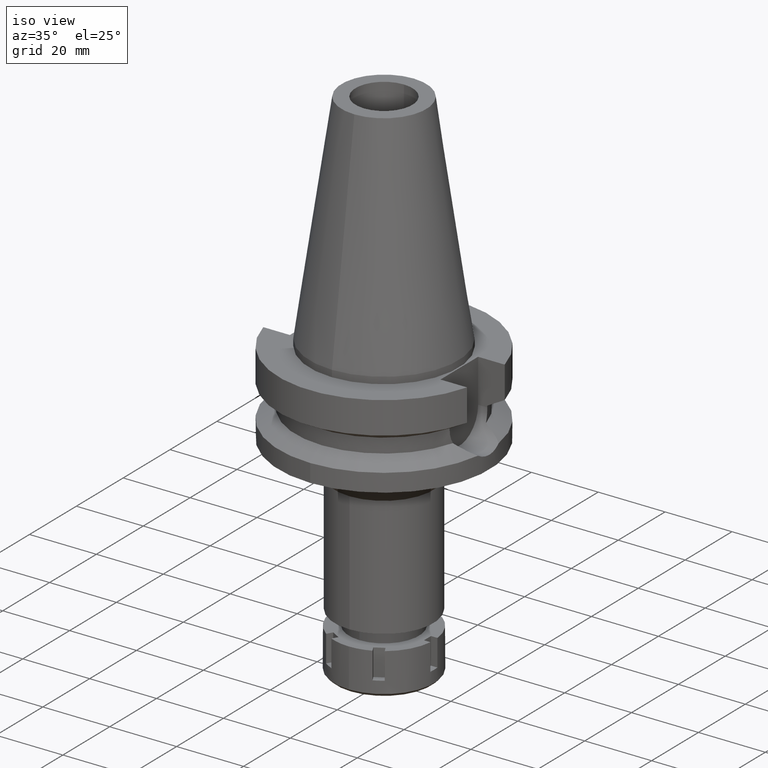
[diagram: clean part render]
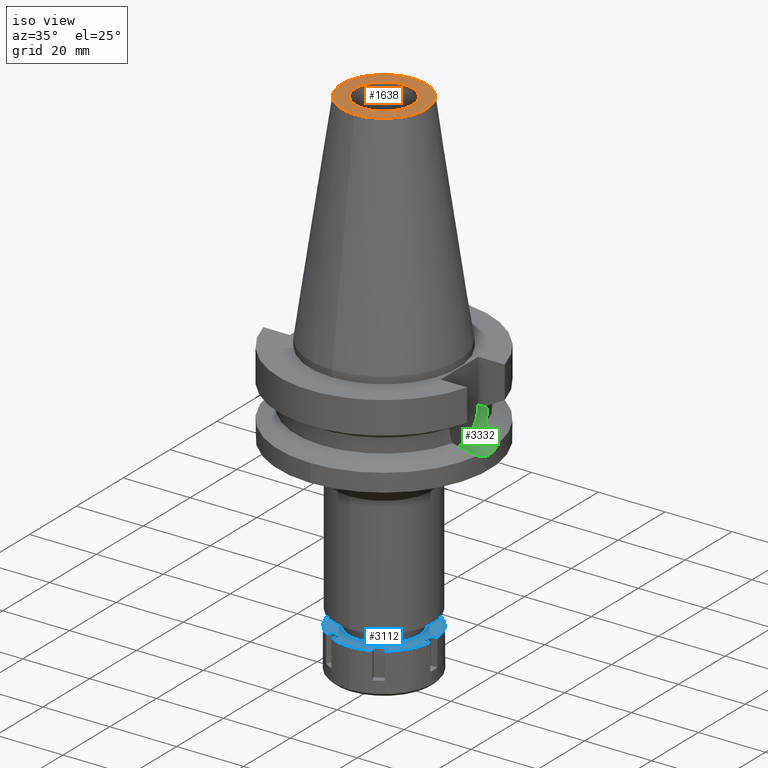
[diagram: same view with three faces highlighted in distinct colors, each labeled with its STEP entity id]
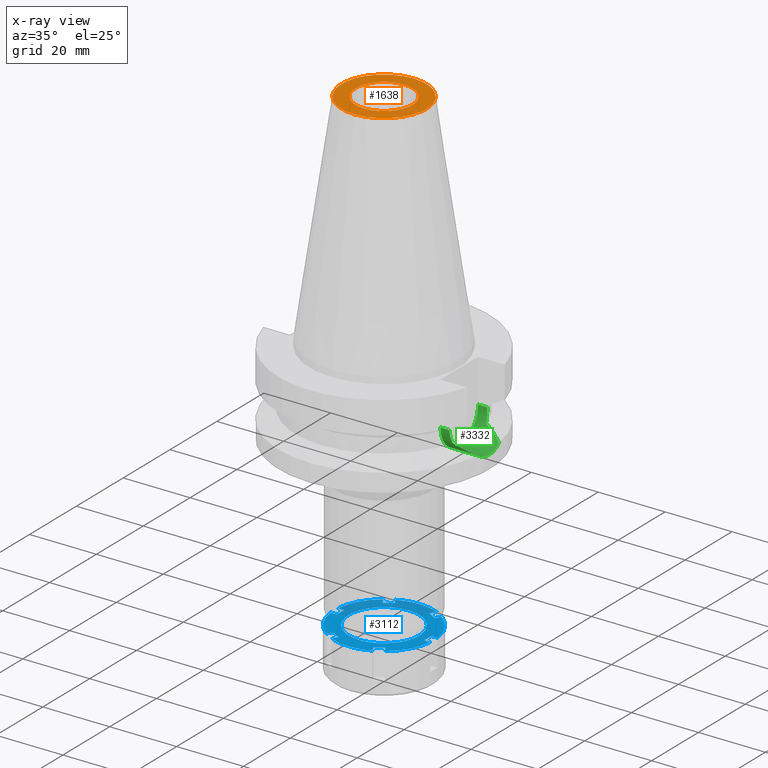
[diagram: x-ray of the same camera — body ghosted, the three highlighted faces saturated]
A machine part, iso view with three faces highlighted in distinct colors.
The next image is the same camera in x-ray (body ghosted, the three faces saturated) — at least one of them is partly hidden behind the body in this view.
Their STEP definitions:

[orange] entity #1638 — the highlighted planar face has unit normal (0, 0, -1).
#5 = DIRECTION ( 'NONE',  ( 0.0000000000000000000, -1.000000000000000000, 0.0000000000000000000 ) ) ;
#29 = VERTEX_POINT ( 'NONE', #2562 ) ;
#133 = AXIS2_PLACEMENT_3D ( 'NONE', #149, #457, #1281 ) ;
#149 = CARTESIAN_POINT ( 'NONE',  ( 0.0000000000000000000, 2.116434598286000100E-14, 65.40000000000000568 ) ) ;
#156 = EDGE_CURVE ( 'NONE', #29, #974, #2081, .T. ) ;
#292 = FACE_BOUND ( 'NONE', #2982, .T. ) ;
#370 = DIRECTION ( 'NONE',  ( 0.0000000000000000000, 1.000000000000000000, 0.0000000000000000000 ) ) ;
#437 = DIRECTION ( 'NONE',  ( 0.0000000000000000000, -1.000000000000000000, 0.0000000000000000000 ) ) ;
#457 = DIRECTION ( 'NONE',  ( 0.0000000000000000000, 0.0000000000000000000, 1.000000000000000000 ) ) ;
#562 = FACE_OUTER_BOUND ( 'NONE', #2606, .T. ) ;
#576 = CARTESIAN_POINT ( 'NONE',  ( 0.0000000000000000000, 2.025565805790000122E-14, 65.40000000000000568 ) ) ;
#630 = CARTESIAN_POINT ( 'NONE',  ( 0.0000000000000000000, 1.625106302469000024E-14, 65.40000000000000568 ) ) ;
#734 = CARTESIAN_POINT ( 'NONE',  ( 0.0000000000000000000, -8.500000000000000000, 65.40000000000000568 ) ) ;
#974 = VERTEX_POINT ( 'NONE', #734 ) ;
#981 = ORIENTED_EDGE ( 'NONE', *, *, #2867, .F. ) ;
#998 = CARTESIAN_POINT ( 'NONE',  ( 0.0000000000000000000, 2.116434598286000100E-14, 65.40000000000000568 ) ) ;
#1085 = AXIS2_PLACEMENT_3D ( 'NONE', #998, #1762, #437 ) ;
#1281 = DIRECTION ( 'NONE',  ( 0.0000000000000000000, 1.000000000000000000, 0.0000000000000000000 ) ) ;
#1323 = CARTESIAN_POINT ( 'NONE',  ( 0.0000000000000000000, 1.625106302469000024E-14, 65.40000000000000568 ) ) ;
#1582 = DIRECTION ( 'NONE',  ( 0.0000000000000000000, -1.000000000000000000, 0.0000000000000000000 ) ) ;
#1638 = ADVANCED_FACE ( 'NONE', ( #562, #292 ), #1700, .F. ) ;
#1691 = CIRCLE ( 'NONE', #2554, 12.68766899429999917 ) ;
#1700 = PLANE ( 'NONE',  #1788 ) ;
#1704 = ORIENTED_EDGE ( 'NONE', *, *, #2321, .F. ) ;
#1725 = VERTEX_POINT ( 'NONE', #2323 ) ;
#1762 = DIRECTION ( 'NONE',  ( 0.0000000000000000000, 0.0000000000000000000, 1.000000000000000000 ) ) ;
#1788 = AXIS2_PLACEMENT_3D ( 'NONE', #576, #2845, #5 ) ;
#1795 = EDGE_CURVE ( 'NONE', #2298, #1725, #2417, .T. ) ;
#2071 = DIRECTION ( 'NONE',  ( 0.0000000000000000000, 0.0000000000000000000, -1.000000000000000000 ) ) ;
#2081 = CIRCLE ( 'NONE', #133, 8.500000000000000000 ) ;
#2118 = ORIENTED_EDGE ( 'NONE', *, *, #156, .F. ) ;
#2298 = VERTEX_POINT ( 'NONE', #3442 ) ;
#2321 = EDGE_CURVE ( 'NONE', #974, #29, #3390, .T. ) ;
#2323 = CARTESIAN_POINT ( 'NONE',  ( 0.0000000000000000000, -12.68766899429999917, 65.40000000000000568 ) ) ;
#2417 = CIRCLE ( 'NONE', #2956, 12.68766899429999917 ) ;
#2554 = AXIS2_PLACEMENT_3D ( 'NONE', #1323, #3040, #1582 ) ;
#2562 = CARTESIAN_POINT ( 'NONE',  ( 0.0000000000000000000, 8.500000000000000000, 65.40000000000000568 ) ) ;
#2606 = EDGE_LOOP ( 'NONE', ( #2925, #981 ) ) ;
#2845 = DIRECTION ( 'NONE',  ( 0.0000000000000000000, 0.0000000000000000000, -1.000000000000000000 ) ) ;
#2867 = EDGE_CURVE ( 'NONE', #1725, #2298, #1691, .T. ) ;
#2925 = ORIENTED_EDGE ( 'NONE', *, *, #1795, .F. ) ;
#2956 = AXIS2_PLACEMENT_3D ( 'NONE', #630, #2071, #370 ) ;
#2982 = EDGE_LOOP ( 'NONE', ( #2118, #1704 ) ) ;
#3040 = DIRECTION ( 'NONE',  ( 0.0000000000000000000, 0.0000000000000000000, -1.000000000000000000 ) ) ;
#3390 = CIRCLE ( 'NONE', #1085, 8.500000000000000000 ) ;
#3442 = CARTESIAN_POINT ( 'NONE',  ( 0.0000000000000000000, 12.68766899429999917, 65.40000000000000568 ) ) ;

[blue] entity #3112 — the highlighted planar face has unit normal (0, 0, -1).
#6 = VERTEX_POINT ( 'NONE', #2618 ) ;
#14 = VECTOR ( 'NONE', #1732, 1000.000000000000114 ) ;
#25 = VECTOR ( 'NONE', #2347, 1000.000000000000000 ) ;
#43 = DIRECTION ( 'NONE',  ( 0.0000000000000000000, 0.0000000000000000000, 1.000000000000000000 ) ) ;
#63 = DIRECTION ( 'NONE',  ( 0.0000000000000000000, -1.000000000000000000, 0.0000000000000000000 ) ) ;
#88 = CARTESIAN_POINT ( 'NONE',  ( 5.200961894324001022, 12.00833024920000014, 0.0000000000000000000 ) ) ;
#91 = ORIENTED_EDGE ( 'NONE', *, *, #2866, .F. ) ;
#103 = CARTESIAN_POINT ( 'NONE',  ( -5.200961894324001022, -12.00833024920000014, 0.0000000000000000000 ) ) ;
#109 = ORIENTED_EDGE ( 'NONE', *, *, #2282, .T. ) ;
#128 = VECTOR ( 'NONE', #1368, 1000.000000000000114 ) ;
#139 = VERTEX_POINT ( 'NONE', #1851 ) ;
#143 = VECTOR ( 'NONE', #2215, 1000.000000000000000 ) ;
#158 = ORIENTED_EDGE ( 'NONE', *, *, #2182, .F. ) ;
#160 = DIRECTION ( 'NONE',  ( -0.5000000000001670886, -0.8660254037843422292, 0.0000000000000000000 ) ) ;
#190 = CARTESIAN_POINT ( 'NONE',  ( 0.0000000000000000000, 0.0000000000000000000, 0.0000000000000000000 ) ) ;
#192 = CIRCLE ( 'NONE', #662, 15.00000000000000533 ) ;
#198 = CARTESIAN_POINT ( 'NONE',  ( -7.799038105676999955, 10.50833024920000014, 0.0000000000000000000 ) ) ;
#219 = VERTEX_POINT ( 'NONE', #2249 ) ;
#229 = VERTEX_POINT ( 'NONE', #1637 ) ;
#239 = VERTEX_POINT ( 'NONE', #1533 ) ;
#255 = ORIENTED_EDGE ( 'NONE', *, *, #1715, .F. ) ;
#281 = DIRECTION ( 'NONE',  ( 0.8660254037844536956, -0.4999999999999738542, 0.0000000000000000000 ) ) ;
#282 = CARTESIAN_POINT ( 'NONE',  ( -13.00000000000000000, -1.500000000000000000, 0.0000000000000000000 ) ) ;
#295 = CARTESIAN_POINT ( 'NONE',  ( 0.0000000000000000000, -15.00000000000000000, 0.0000000000000000000 ) ) ;
#302 = ORIENTED_EDGE ( 'NONE', *, *, #3281, .F. ) ;
#313 = CIRCLE ( 'NONE', #3210, 10.50000000000000000 ) ;
#346 = LINE ( 'NONE', #414, #1259 ) ;
#360 = EDGE_CURVE ( 'NONE', #566, #1111, #1205, .T. ) ;
#369 = VECTOR ( 'NONE', #1106, 1000.000000000000000 ) ;
#377 = ORIENTED_EDGE ( 'NONE', *, *, #2015, .F. ) ;
#395 = ORIENTED_EDGE ( 'NONE', *, *, #3487, .F. ) ;
#396 = DIRECTION ( 'NONE',  ( 0.0000000000000000000, -1.000000000000000000, 0.0000000000000000000 ) ) ;
#414 = CARTESIAN_POINT ( 'NONE',  ( -8.761443883976001601, 12.17526595470999951, 0.0000000000000000000 ) ) ;
#415 = VERTEX_POINT ( 'NONE', #1653 ) ;
#422 = AXIS2_PLACEMENT_3D ( 'NONE', #3171, #948, #1212 ) ;
#456 = EDGE_CURVE ( 'NONE', #2153, #904, #2724, .T. ) ;
#480 = DIRECTION ( 'NONE',  ( -0.9949874371066197432, 0.1000000000000019623, 0.0000000000000000000 ) ) ;
#488 = ORIENTED_EDGE ( 'NONE', *, *, #2106, .F. ) ;
#513 = VERTEX_POINT ( 'NONE', #2239 ) ;
#519 = VERTEX_POINT ( 'NONE', #2428 ) ;
#533 = DIRECTION ( 'NONE',  ( 0.0000000000000000000, -1.000000000000000000, 0.0000000000000000000 ) ) ;
#539 = CARTESIAN_POINT ( 'NONE',  ( -14.92481155659999992, 1.500000000000000000, 0.0000000000000000000 ) ) ;
#556 = AXIS2_PLACEMENT_3D ( 'NONE', #190, #1598, #2978 ) ;
#559 = CIRCLE ( 'NONE', #3036, 15.00000000000000000 ) ;
#566 = VERTEX_POINT ( 'NONE', #3360 ) ;
#574 = CARTESIAN_POINT ( 'NONE',  ( 0.0000000000000000000, 0.0000000000000000000, 0.0000000000000000000 ) ) ;
#585 = ORIENTED_EDGE ( 'NONE', *, *, #1568, .F. ) ;
#611 = EDGE_CURVE ( 'NONE', #6, #3595, #1913, .T. ) ;
#621 = DIRECTION ( 'NONE',  ( 0.5000000000002851053, -0.8660254037842740615, 0.0000000000000000000 ) ) ;
#637 = CARTESIAN_POINT ( 'NONE',  ( -7.799038105676999955, -10.50833024920000014, 0.0000000000000000000 ) ) ;
#644 = DIRECTION ( 'NONE',  ( 0.0000000000000000000, 0.0000000000000000000, -1.000000000000000000 ) ) ;
#653 = CARTESIAN_POINT ( 'NONE',  ( -6.163367672623000004, -13.67526595470999951, 0.0000000000000000000 ) ) ;
#662 = AXIS2_PLACEMENT_3D ( 'NONE', #3185, #644, #1780 ) ;
#704 = CARTESIAN_POINT ( 'NONE',  ( -13.00000000000000000, -1.500000000000000000, 0.0000000000000000000 ) ) ;
#707 = LINE ( 'NONE', #2397, #3515 ) ;
#729 = VECTOR ( 'NONE', #2745, 1000.000000000000000 ) ;
#807 = DIRECTION ( 'NONE',  ( 0.0000000000000000000, 0.0000000000000000000, -1.000000000000000000 ) ) ;
#823 = DIRECTION ( 'NONE',  ( -0.5000000000001670886, 0.8660254037843422292, 0.0000000000000000000 ) ) ;
#838 = EDGE_CURVE ( 'NONE', #229, #1350, #2715, .T. ) ;
#848 = ORIENTED_EDGE ( 'NONE', *, *, #2364, .F. ) ;
#872 = CARTESIAN_POINT ( 'NONE',  ( 0.0000000000000000000, 0.0000000000000000000, 0.0000000000000000000 ) ) ;
#880 = ORIENTED_EDGE ( 'NONE', *, *, #3198, .F. ) ;
#904 = VERTEX_POINT ( 'NONE', #1649 ) ;
#936 = LINE ( 'NONE', #103, #1907 ) ;
#948 = DIRECTION ( 'NONE',  ( 0.0000000000000000000, 0.0000000000000000000, -1.000000000000000000 ) ) ;
#991 = CARTESIAN_POINT ( 'NONE',  ( 7.799038105676999955, 10.50833024920000014, 0.0000000000000000000 ) ) ;
#996 = EDGE_CURVE ( 'NONE', #139, #3460, #3045, .T. ) ;
#1002 = VERTEX_POINT ( 'NONE', #198 ) ;
#1011 = FACE_BOUND ( 'NONE', #2846, .T. ) ;
#1012 = DIRECTION ( 'NONE',  ( 0.0000000000000000000, 0.0000000000000000000, -1.000000000000000000 ) ) ;
#1106 = DIRECTION ( 'NONE',  ( -1.000000000000000000, -1.222806879009000049E-14, 0.0000000000000000000 ) ) ;
#1111 = VERTEX_POINT ( 'NONE', #295 ) ;
#1129 = CARTESIAN_POINT ( 'NONE',  ( 5.200961894323000934, -12.00833024920000014, 0.0000000000000000000 ) ) ;
#1135 = VERTEX_POINT ( 'NONE', #2851 ) ;
#1142 = ORIENTED_EDGE ( 'NONE', *, *, #1296, .F. ) ;
#1145 = LINE ( 'NONE', #1721, #1379 ) ;
#1165 = EDGE_CURVE ( 'NONE', #3460, #1308, #1145, .T. ) ;
#1184 = EDGE_CURVE ( 'NONE', #3595, #3288, #1411, .T. ) ;
#1193 = CARTESIAN_POINT ( 'NONE',  ( -5.200961894324001022, -12.00833024920000014, 0.0000000000000000000 ) ) ;
#1205 = CIRCLE ( 'NONE', #1443, 14.99999999999999645 ) ;
#1208 = VECTOR ( 'NONE', #160, 1000.000000000000000 ) ;
#1212 = DIRECTION ( 'NONE',  ( 0.0000000000000000000, 1.000000000000000000, 0.0000000000000000000 ) ) ;
#1222 = VERTEX_POINT ( 'NONE', #2660 ) ;
#1234 = DIRECTION ( 'NONE',  ( -0.8660254037844536956, 0.4999999999999738542, 0.0000000000000000000 ) ) ;
#1240 = CARTESIAN_POINT ( 'NONE',  ( 13.00000000000000000, 1.500000000000000000, 0.0000000000000000000 ) ) ;
#1259 = VECTOR ( 'NONE', #1587, 1000.000000000000000 ) ;
#1266 = CARTESIAN_POINT ( 'NONE',  ( 8.761443883976001601, 12.17526595470999951, 0.0000000000000000000 ) ) ;
#1268 = VERTEX_POINT ( 'NONE', #1266 ) ;
#1274 = PLANE ( 'NONE',  #1978 ) ;
#1294 = CARTESIAN_POINT ( 'NONE',  ( 0.0000000000000000000, 0.0000000000000000000, 0.0000000000000000000 ) ) ;
#1296 = EDGE_CURVE ( 'NONE', #1779, #3375, #936, .T. ) ;
#1305 = ORIENTED_EDGE ( 'NONE', *, *, #3132, .T. ) ;
#1308 = VERTEX_POINT ( 'NONE', #991 ) ;
#1319 = DIRECTION ( 'NONE',  ( 0.0000000000000000000, 0.0000000000000000000, -1.000000000000000000 ) ) ;
#1350 = VERTEX_POINT ( 'NONE', #704 ) ;
#1357 = LINE ( 'NONE', #1616, #2723 ) ;
#1368 = DIRECTION ( 'NONE',  ( -0.5000000000002851053, -0.8660254037842740615, 0.0000000000000000000 ) ) ;
#1379 = VECTOR ( 'NONE', #281, 1000.000000000000000 ) ;
#1402 = CARTESIAN_POINT ( 'NONE',  ( -8.761443883976001601, -12.17526595470999951, 0.0000000000000000000 ) ) ;
#1411 = LINE ( 'NONE', #2523, #3204 ) ;
#1428 = ORIENTED_EDGE ( 'NONE', *, *, #2575, .T. ) ;
#1441 = VECTOR ( 'NONE', #2408, 1000.000000000000114 ) ;
#1443 = AXIS2_PLACEMENT_3D ( 'NONE', #1294, #2174, #1946 ) ;
#1484 = DIRECTION ( 'NONE',  ( 1.000000000000000000, 1.234342792962000005E-14, 0.0000000000000000000 ) ) ;
#1499 = EDGE_CURVE ( 'NONE', #415, #1135, #3259, .T. ) ;
#1520 = DIRECTION ( 'NONE',  ( 0.0000000000000000000, 0.0000000000000000000, -1.000000000000000000 ) ) ;
#1533 = CARTESIAN_POINT ( 'NONE',  ( 8.761443883976001601, -12.17526595470999951, 0.0000000000000000000 ) ) ;
#1560 = VECTOR ( 'NONE', #621, 1000.000000000000114 ) ;
#1568 = EDGE_CURVE ( 'NONE', #3083, #415, #3152, .T. ) ;
#1571 = CARTESIAN_POINT ( 'NONE',  ( -7.799038105676999955, -10.50833024920000014, 0.0000000000000000000 ) ) ;
#1587 = DIRECTION ( 'NONE',  ( 0.5000000000001670886, -0.8660254037843422292, 0.0000000000000000000 ) ) ;
#1588 = ORIENTED_EDGE ( 'NONE', *, *, #2340, .F. ) ;
#1598 = DIRECTION ( 'NONE',  ( 0.0000000000000000000, 0.0000000000000000000, -1.000000000000000000 ) ) ;
#1616 = CARTESIAN_POINT ( 'NONE',  ( -7.799038105676999955, 10.50833024920000014, 0.0000000000000000000 ) ) ;
#1637 = CARTESIAN_POINT ( 'NONE',  ( -13.00000000000000000, 1.500000000000000000, 0.0000000000000000000 ) ) ;
#1649 = CARTESIAN_POINT ( 'NONE',  ( -8.761443883976001601, 12.17526595470999951, 0.0000000000000000000 ) ) ;
#1653 = CARTESIAN_POINT ( 'NONE',  ( -6.163367672621999915, 13.67526595470999951, 0.0000000000000000000 ) ) ;
#1658 = CARTESIAN_POINT ( 'NONE',  ( 14.92481155659999992, -1.500000000000000000, 0.0000000000000000000 ) ) ;
#1715 = EDGE_CURVE ( 'NONE', #1135, #139, #1967, .T. ) ;
#1721 = CARTESIAN_POINT ( 'NONE',  ( 5.200961894324001022, 12.00833024920000014, 0.0000000000000000000 ) ) ;
#1732 = DIRECTION ( 'NONE',  ( -0.5000000000002851053, 0.8660254037842740615, 0.0000000000000000000 ) ) ;
#1779 = VERTEX_POINT ( 'NONE', #1193 ) ;
#1780 = DIRECTION ( 'NONE',  ( 0.9949874371066197432, -0.1000000000000019623, 0.0000000000000000000 ) ) ;
#1792 = LINE ( 'NONE', #1240, #25 ) ;
#1836 = CARTESIAN_POINT ( 'NONE',  ( -6.163367672623000004, -13.67526595470999951, 0.0000000000000000000 ) ) ;
#1845 = LINE ( 'NONE', #2703, #2421 ) ;
#1851 = CARTESIAN_POINT ( 'NONE',  ( 6.163367672623000004, 13.67526595470999951, 0.0000000000000000000 ) ) ;
#1854 = CIRCLE ( 'NONE', #2308, 15.00000000000000355 ) ;
#1868 = DIRECTION ( 'NONE',  ( 0.0000000000000000000, 0.0000000000000000000, -1.000000000000000000 ) ) ;
#1888 = CARTESIAN_POINT ( 'NONE',  ( 0.0000000000000000000, 10.50000000000000000, 0.0000000000000000000 ) ) ;
#1907 = VECTOR ( 'NONE', #1234, 1000.000000000000000 ) ;
#1913 = LINE ( 'NONE', #1658, #369 ) ;
#1918 = CIRCLE ( 'NONE', #3218, 10.50000000000000000 ) ;
#1946 = DIRECTION ( 'NONE',  ( 0.4108911781748131320, -0.9116843969807282289, 0.0000000000000000000 ) ) ;
#1967 = CIRCLE ( 'NONE', #422, 15.00000000000000000 ) ;
#1978 = AXIS2_PLACEMENT_3D ( 'NONE', #2888, #1520, #2911 ) ;
#2000 = LINE ( 'NONE', #3125, #143 ) ;
#2015 = EDGE_CURVE ( 'NONE', #1002, #3083, #1357, .T. ) ;
#2018 = EDGE_CURVE ( 'NONE', #3323, #1779, #2972, .T. ) ;
#2024 = ORIENTED_EDGE ( 'NONE', *, *, #996, .F. ) ;
#2065 = FACE_OUTER_BOUND ( 'NONE', #2521, .T. ) ;
#2084 = ORIENTED_EDGE ( 'NONE', *, *, #3548, .F. ) ;
#2098 = ORIENTED_EDGE ( 'NONE', *, *, #456, .F. ) ;
#2106 = EDGE_CURVE ( 'NONE', #2412, #519, #313, .T. ) ;
#2114 = DIRECTION ( 'NONE',  ( -0.8660254037844541397, -0.4999999999999731326, 0.0000000000000000000 ) ) ;
#2117 = DIRECTION ( 'NONE',  ( -0.5840962589317197917, -0.8116843969807286951, 0.0000000000000000000 ) ) ;
#2139 = VERTEX_POINT ( 'NONE', #1402 ) ;
#2153 = VERTEX_POINT ( 'NONE', #539 ) ;
#2155 = CARTESIAN_POINT ( 'NONE',  ( 5.200961894323000934, -12.00833024920000014, 0.0000000000000000000 ) ) ;
#2159 = ORIENTED_EDGE ( 'NONE', *, *, #1499, .F. ) ;
#2174 = DIRECTION ( 'NONE',  ( 0.0000000000000000000, 0.0000000000000000000, -1.000000000000000000 ) ) ;
#2182 = EDGE_CURVE ( 'NONE', #239, #513, #2222, .T. ) ;
#2199 = DIRECTION ( 'NONE',  ( 0.0000000000000000000, 1.000000000000000000, 0.0000000000000000000 ) ) ;
#2204 = CARTESIAN_POINT ( 'NONE',  ( 0.0000000000000000000, 0.0000000000000000000, 0.0000000000000000000 ) ) ;
#2208 = ORIENTED_EDGE ( 'NONE', *, *, #838, .T. ) ;
#2215 = DIRECTION ( 'NONE',  ( 0.5000000000001670886, 0.8660254037843422292, 0.0000000000000000000 ) ) ;
#2222 = LINE ( 'NONE', #3359, #3262 ) ;
#2239 = CARTESIAN_POINT ( 'NONE',  ( 7.799038105676999955, -10.50833024920000014, 0.0000000000000000000 ) ) ;
#2240 = EDGE_CURVE ( 'NONE', #904, #1002, #346, .T. ) ;
#2249 = CARTESIAN_POINT ( 'NONE',  ( -14.92481155659999992, -1.500000000000000000, 0.0000000000000000000 ) ) ;
#2273 = ORIENTED_EDGE ( 'NONE', *, *, #611, .T. ) ;
#2281 = CARTESIAN_POINT ( 'NONE',  ( -5.200961894323000934, 12.00833024920000014, 0.0000000000000000000 ) ) ;
#2282 = EDGE_CURVE ( 'NONE', #2153, #229, #1845, .T. ) ;
#2308 = AXIS2_PLACEMENT_3D ( 'NONE', #3529, #1012, #2117 ) ;
#2309 = ORIENTED_EDGE ( 'NONE', *, *, #360, .F. ) ;
#2340 = EDGE_CURVE ( 'NONE', #6, #239, #192, .T. ) ;
#2347 = DIRECTION ( 'NONE',  ( 1.000000000000000000, -1.107447739479999982E-14, 0.0000000000000000000 ) ) ;
#2356 = EDGE_CURVE ( 'NONE', #2139, #219, #1854, .T. ) ;
#2364 = EDGE_CURVE ( 'NONE', #3375, #2139, #3248, .T. ) ;
#2397 = CARTESIAN_POINT ( 'NONE',  ( 7.799038105676999955, -10.50833024920000014, 0.0000000000000000000 ) ) ;
#2405 = VERTEX_POINT ( 'NONE', #2155 ) ;
#2408 = DIRECTION ( 'NONE',  ( 0.5000000000002851053, 0.8660254037842740615, 0.0000000000000000000 ) ) ;
#2412 = VERTEX_POINT ( 'NONE', #1888 ) ;
#2421 = VECTOR ( 'NONE', #1484, 1000.000000000000000 ) ;
#2426 = DIRECTION ( 'NONE',  ( 0.8660254037844541397, 0.4999999999999731326, 0.0000000000000000000 ) ) ;
#2428 = CARTESIAN_POINT ( 'NONE',  ( 0.0000000000000000000, -10.50000000000000000, 0.0000000000000000000 ) ) ;
#2460 = DIRECTION ( 'NONE',  ( 0.0000000000000000000, 0.0000000000000000000, 1.000000000000000000 ) ) ;
#2517 = CARTESIAN_POINT ( 'NONE',  ( 0.0000000000000000000, 0.0000000000000000000, 0.0000000000000000000 ) ) ;
#2521 = EDGE_LOOP ( 'NONE', ( #255, #2159, #585, #377, #2742, #2098, #109, #2208, #1428, #3153, #848, #1142, #3404, #395, #2309, #2963, #2084, #158, #1588, #2273, #2693, #1305, #91, #302, #3235, #2024 ) ) ;
#2523 = CARTESIAN_POINT ( 'NONE',  ( 13.00000000000000000, -1.500000000000000000, 0.0000000000000000000 ) ) ;
#2575 = EDGE_CURVE ( 'NONE', #1350, #219, #2870, .T. ) ;
#2610 = EDGE_CURVE ( 'NONE', #2405, #566, #3158, .T. ) ;
#2618 = CARTESIAN_POINT ( 'NONE',  ( 14.92481155659999992, -1.500000000000000000, 0.0000000000000000000 ) ) ;
#2660 = CARTESIAN_POINT ( 'NONE',  ( 14.92481155659999992, 1.500000000000000000, 0.0000000000000000000 ) ) ;
#2693 = ORIENTED_EDGE ( 'NONE', *, *, #1184, .T. ) ;
#2703 = CARTESIAN_POINT ( 'NONE',  ( -14.92481155659999992, 1.500000000000000000, 0.0000000000000000000 ) ) ;
#2715 = LINE ( 'NONE', #2740, #3395 ) ;
#2723 = VECTOR ( 'NONE', #2426, 1000.000000000000114 ) ;
#2724 = CIRCLE ( 'NONE', #3502, 15.00000000000000533 ) ;
#2740 = CARTESIAN_POINT ( 'NONE',  ( -13.00000000000000000, 1.500000000000000000, 0.0000000000000000000 ) ) ;
#2742 = ORIENTED_EDGE ( 'NONE', *, *, #2240, .F. ) ;
#2745 = DIRECTION ( 'NONE',  ( -1.000000000000000000, 1.199735051103000138E-14, 0.0000000000000000000 ) ) ;
#2787 = AXIS2_PLACEMENT_3D ( 'NONE', #2204, #807, #3342 ) ;
#2830 = DIRECTION ( 'NONE',  ( 0.0000000000000000000, 1.000000000000000000, 0.0000000000000000000 ) ) ;
#2846 = EDGE_LOOP ( 'NONE', ( #488, #880 ) ) ;
#2848 = CIRCLE ( 'NONE', #556, 15.00000000000000355 ) ;
#2851 = CARTESIAN_POINT ( 'NONE',  ( 0.0000000000000000000, 15.00000000000000000, 0.0000000000000000000 ) ) ;
#2866 = EDGE_CURVE ( 'NONE', #1268, #1222, #2848, .T. ) ;
#2870 = LINE ( 'NONE', #282, #729 ) ;
#2888 = CARTESIAN_POINT ( 'NONE',  ( 0.0000000000000000000, 0.0000000000000000000, 0.0000000000000000000 ) ) ;
#2911 = DIRECTION ( 'NONE',  ( 0.0000000000000000000, -1.000000000000000000, 0.0000000000000000000 ) ) ;
#2940 = CARTESIAN_POINT ( 'NONE',  ( 0.0000000000000000000, 0.0000000000000000000, 0.0000000000000000000 ) ) ;
#2963 = ORIENTED_EDGE ( 'NONE', *, *, #2610, .F. ) ;
#2972 = LINE ( 'NONE', #1836, #1441 ) ;
#2978 = DIRECTION ( 'NONE',  ( 0.5840962589317197917, 0.8116843969807286951, 0.0000000000000000000 ) ) ;
#3036 = AXIS2_PLACEMENT_3D ( 'NONE', #2940, #1868, #396 ) ;
#3045 = LINE ( 'NONE', #3066, #128 ) ;
#3066 = CARTESIAN_POINT ( 'NONE',  ( 6.163367672623000004, 13.67526595470999951, 0.0000000000000000000 ) ) ;
#3069 = CARTESIAN_POINT ( 'NONE',  ( 13.00000000000000000, 1.500000000000000000, 0.0000000000000000000 ) ) ;
#3083 = VERTEX_POINT ( 'NONE', #3476 ) ;
#3112 = ADVANCED_FACE ( 'NONE', ( #2065, #1011 ), #1274, .F. ) ;
#3125 = CARTESIAN_POINT ( 'NONE',  ( 7.799038105676999955, 10.50833024920000014, 0.0000000000000000000 ) ) ;
#3132 = EDGE_CURVE ( 'NONE', #3288, #1222, #1792, .T. ) ;
#3152 = LINE ( 'NONE', #2281, #14 ) ;
#3153 = ORIENTED_EDGE ( 'NONE', *, *, #2356, .F. ) ;
#3158 = LINE ( 'NONE', #1129, #1560 ) ;
#3171 = CARTESIAN_POINT ( 'NONE',  ( 0.0000000000000000000, 0.0000000000000000000, 0.0000000000000000000 ) ) ;
#3185 = CARTESIAN_POINT ( 'NONE',  ( 0.0000000000000000000, 0.0000000000000000000, 0.0000000000000000000 ) ) ;
#3198 = EDGE_CURVE ( 'NONE', #519, #2412, #1918, .T. ) ;
#3204 = VECTOR ( 'NONE', #2830, 1000.000000000000000 ) ;
#3210 = AXIS2_PLACEMENT_3D ( 'NONE', #574, #43, #2199 ) ;
#3218 = AXIS2_PLACEMENT_3D ( 'NONE', #872, #2460, #533 ) ;
#3235 = ORIENTED_EDGE ( 'NONE', *, *, #1165, .F. ) ;
#3248 = LINE ( 'NONE', #1571, #1208 ) ;
#3259 = CIRCLE ( 'NONE', #2787, 14.99999999999999645 ) ;
#3262 = VECTOR ( 'NONE', #823, 1000.000000000000000 ) ;
#3281 = EDGE_CURVE ( 'NONE', #1308, #1268, #2000, .T. ) ;
#3288 = VERTEX_POINT ( 'NONE', #3069 ) ;
#3323 = VERTEX_POINT ( 'NONE', #653 ) ;
#3342 = DIRECTION ( 'NONE',  ( -0.4108911781748131320, 0.9116843969807282289, 0.0000000000000000000 ) ) ;
#3359 = CARTESIAN_POINT ( 'NONE',  ( 8.761443883976001601, -12.17526595470999951, 0.0000000000000000000 ) ) ;
#3360 = CARTESIAN_POINT ( 'NONE',  ( 6.163367672621999915, -13.67526595470999951, 0.0000000000000000000 ) ) ;
#3375 = VERTEX_POINT ( 'NONE', #637 ) ;
#3395 = VECTOR ( 'NONE', #63, 1000.000000000000000 ) ;
#3404 = ORIENTED_EDGE ( 'NONE', *, *, #2018, .F. ) ;
#3460 = VERTEX_POINT ( 'NONE', #88 ) ;
#3476 = CARTESIAN_POINT ( 'NONE',  ( -5.200961894323000934, 12.00833024920000014, 0.0000000000000000000 ) ) ;
#3487 = EDGE_CURVE ( 'NONE', #1111, #3323, #559, .T. ) ;
#3502 = AXIS2_PLACEMENT_3D ( 'NONE', #2517, #1319, #480 ) ;
#3515 = VECTOR ( 'NONE', #2114, 1000.000000000000114 ) ;
#3529 = CARTESIAN_POINT ( 'NONE',  ( 0.0000000000000000000, 0.0000000000000000000, 0.0000000000000000000 ) ) ;
#3548 = EDGE_CURVE ( 'NONE', #513, #2405, #707, .T. ) ;
#3556 = CARTESIAN_POINT ( 'NONE',  ( 13.00000000000000000, -1.500000000000000000, 0.0000000000000000000 ) ) ;
#3595 = VERTEX_POINT ( 'NONE', #3556 ) ;

[green] entity #3332 — the highlighted cylindrical surface (edge-blend (fillet) strip) has radius 8.05 mm, axis along (1, 0, 0).
#12 = CARTESIAN_POINT ( 'NONE',  ( 31.50000000000000000, 0.0000000000000000000, -23.00000000000000000 ) ) ;
#51 = CARTESIAN_POINT ( 'NONE',  ( 27.46525512646479328, -6.470519234495467842, -19.73913887583745819 ) ) ;
#70 = FACE_OUTER_BOUND ( 'NONE', #1103, .T. ) ;
#107 = CARTESIAN_POINT ( 'NONE',  ( 22.50000000000000000, 0.0000000000000000000, -14.94999999999999929 ) ) ;
#111 = CARTESIAN_POINT ( 'NONE',  ( 26.07032907409766054, 6.949816566717723632, -19.02443567109976996 ) ) ;
#123 = CARTESIAN_POINT ( 'NONE',  ( 22.50000000000000000, 8.050000000000000711, -14.94999999999999929 ) ) ;
#141 = EDGE_CURVE ( 'NONE', #978, #640, #3510, .T. ) ;
#169 = CARTESIAN_POINT ( 'NONE',  ( 31.17899877608999759, -4.485536235554000051, -21.63449434733000132 ) ) ;
#216 = CARTESIAN_POINT ( 'NONE',  ( 31.50000000000000000, 0.0000000000000000000, -23.00000000000000000 ) ) ;
#240 = EDGE_CURVE ( 'NONE', #2326, #343, #2790, .T. ) ;
#258 = CARTESIAN_POINT ( 'NONE',  ( 25.32118155423751560, -7.816096717212906775, -16.87652453452377443 ) ) ;
#297 = CARTESIAN_POINT ( 'NONE',  ( 31.17899877608999759, 4.485536235554000051, -21.63449434733000132 ) ) ;
#301 = CARTESIAN_POINT ( 'NONE',  ( 27.31960198137451457, 6.525725077883004488, -19.66427516337581238 ) ) ;
#306 = ORIENTED_EDGE ( 'NONE', *, *, #1072, .F. ) ;
#338 = CARTESIAN_POINT ( 'NONE',  ( 29.29892561663666228, -5.660045117402981774, -20.67623605529231057 ) ) ;
#343 = VERTEX_POINT ( 'NONE', #2461 ) ;
#418 = CARTESIAN_POINT ( 'NONE',  ( 25.24772266958000344, 8.050000000000000711, -14.94999999999999929 ) ) ;
#463 = CARTESIAN_POINT ( 'NONE',  ( 31.47113664202177929, -1.554941824656309368, -22.89006639569757340 ) ) ;
#489 = CARTESIAN_POINT ( 'NONE',  ( 25.36814761471070767, -7.663830712965410186, -17.48803584493431984 ) ) ;
#507 = CARTESIAN_POINT ( 'NONE',  ( 31.17899877608999759, -4.485536235554000051, -21.63449434733000132 ) ) ;
#511 = CARTESIAN_POINT ( 'NONE',  ( 25.24772266958000344, -8.050000000000000711, -14.94999999999999929 ) ) ;
#530 = CARTESIAN_POINT ( 'NONE',  ( 25.31202572170774800, -7.845729406580115750, -16.75279821057748464 ) ) ;
#532 = ORIENTED_EDGE ( 'NONE', *, *, #1022, .T. ) ;
#548 = CARTESIAN_POINT ( 'NONE',  ( 26.19517976815230043, -6.915497250324054157, -19.08857739400359321 ) ) ;
#567 = CARTESIAN_POINT ( 'NONE',  ( 27.39690837394687861, -6.496264405211787718, -19.70415583070325027 ) ) ;
#569 = CARTESIAN_POINT ( 'NONE',  ( 31.46210895781885597, 1.552282157186114731, -22.85145502659974426 ) ) ;
#572 = CARTESIAN_POINT ( 'NONE',  ( 27.50580515941643256, 6.455375735323339192, -19.75943289109962819 ) ) ;
#582 = DIRECTION ( 'NONE',  ( -1.000000000000000000, -1.551559937893000172E-14, 0.0000000000000000000 ) ) ;
#589 = CARTESIAN_POINT ( 'NONE',  ( 27.52005190224062758, 6.449945960480633289, -19.76671233571943986 ) ) ;
#631 = ORIENTED_EDGE ( 'NONE', *, *, #141, .T. ) ;
#640 = VERTEX_POINT ( 'NONE', #3630 ) ;
#683 = CARTESIAN_POINT ( 'NONE',  ( 28.33581289734337005, 6.118932527131755172, -20.18370230277368194 ) ) ;
#748 = CARTESIAN_POINT ( 'NONE',  ( 31.37856248377987711, -2.761955851210574853, -22.51193919389972820 ) ) ;
#758 = CARTESIAN_POINT ( 'NONE',  ( 28.07145816793963888, 6.232105350654334686, -20.04852788552233633 ) ) ;
#776 = EDGE_CURVE ( 'NONE', #1963, #978, #3156, .T. ) ;
#813 = CARTESIAN_POINT ( 'NONE',  ( 25.53175183775000079, 7.097862220092999941, -18.74774300138999905 ) ) ;
#834 = CARTESIAN_POINT ( 'NONE',  ( 31.44586993974121825, 1.845388077536185056, -22.78626573704029568 ) ) ;
#849 = CARTESIAN_POINT ( 'NONE',  ( 30.86107711273433551, -4.726733433374473492, -21.47264234858433340 ) ) ;
#869 = CARTESIAN_POINT ( 'NONE',  ( 28.37627124689760194, -6.100386999416581801, -20.20507031857361468 ) ) ;
#882 = CARTESIAN_POINT ( 'NONE',  ( 28.61845636110202307, -5.991386390782725613, -20.32880833197089032 ) ) ;
#923 = LINE ( 'NONE', #2820, #3333 ) ;
#942 = CARTESIAN_POINT ( 'NONE',  ( 30.47179824742707055, 5.022067102973935881, -21.27446282927749266 ) ) ;
#978 = VERTEX_POINT ( 'NONE', #813 ) ;
#986 = CARTESIAN_POINT ( 'NONE',  ( 25.44390410195637742, 7.408324269918076688, -18.11690676764972352 ) ) ;
#1022 = EDGE_CURVE ( 'NONE', #3126, #1370, #2957, .T. ) ;
#1068 = CARTESIAN_POINT ( 'NONE',  ( 25.30212919435223995, -7.877667573970332349, -16.61042047323947202 ) ) ;
#1072 = EDGE_CURVE ( 'NONE', #1363, #1370, #3197, .T. ) ;
#1103 = EDGE_LOOP ( 'NONE', ( #2624, #631, #2529, #3367, #1179, #532, #306, #2768, #2477 ) ) ;
#1134 = CARTESIAN_POINT ( 'NONE',  ( 27.52881713609832204, 6.446599892928023934, -19.77119083399652766 ) ) ;
#1179 = ORIENTED_EDGE ( 'NONE', *, *, #2570, .F. ) ;
#1239 = DIRECTION ( 'NONE',  ( 0.0000000000000000000, 1.000000000000000000, 0.0000000000000000000 ) ) ;
#1288 = LINE ( 'NONE', #123, #1984 ) ;
#1291 = CARTESIAN_POINT ( 'NONE',  ( 25.24772266958000344, -8.050000000000000711, -14.94999999999999929 ) ) ;
#1295 = CARTESIAN_POINT ( 'NONE',  ( 25.37569567372544910, 7.637836187999782922, -17.49781209657168191 ) ) ;
#1335 = CARTESIAN_POINT ( 'NONE',  ( 25.48480653792046624, 7.266729367422243513, -18.43213561436577308 ) ) ;
#1348 = CARTESIAN_POINT ( 'NONE',  ( 25.28048358772242210, -7.947040743794914874, -16.24400980664077920 ) ) ;
#1361 = CARTESIAN_POINT ( 'NONE',  ( 31.41183557644294666, -2.353622844952649285, -22.64825188921627941 ) ) ;
#1363 = VERTEX_POINT ( 'NONE', #169 ) ;
#1370 = VERTEX_POINT ( 'NONE', #2683 ) ;
#1373 = CARTESIAN_POINT ( 'NONE',  ( 27.72885439545745001, 6.369024823181214323, -19.87341337722321555 ) ) ;
#1413 = CARTESIAN_POINT ( 'NONE',  ( 31.41417556869188132, 2.322180997264773783, -22.65779456376182566 ) ) ;
#1427 = CARTESIAN_POINT ( 'NONE',  ( 27.17318286542062822, 6.579058153184790037, -19.58939461196739629 ) ) ;
#1430 = EDGE_CURVE ( 'NONE', #1363, #3530, #2470, .T. ) ;
#1439 = CARTESIAN_POINT ( 'NONE',  ( 31.17899877608999759, -4.485536235554000051, -21.63449434733000132 ) ) ;
#1464 = CARTESIAN_POINT ( 'NONE',  ( 22.50000000000000000, 0.0000000000000000000, -14.94999999999999929 ) ) ;
#1586 = CARTESIAN_POINT ( 'NONE',  ( 25.24772266958000344, -8.050000000000000711, -15.26991324108737302 ) ) ;
#1599 = DIRECTION ( 'NONE',  ( 1.000000000000000000, -1.551559937893000172E-14, 0.0000000000000000000 ) ) ;
#1610 = CARTESIAN_POINT ( 'NONE',  ( 25.32840589093493122, 7.792665650289850809, -16.96921537928767165 ) ) ;
#1652 = CARTESIAN_POINT ( 'NONE',  ( 31.43707380494914361, 1.991874285742970763, -22.75081719607997144 ) ) ;
#1666 = CARTESIAN_POINT ( 'NONE',  ( 25.31950905643225269, -7.821515286679913359, -16.85442525727320273 ) ) ;
#1671 = CARTESIAN_POINT ( 'NONE',  ( 27.64244342979142743, 6.402970456776809094, -19.82925086783606616 ) ) ;
#1693 = AXIS2_PLACEMENT_3D ( 'NONE', #1464, #3421, #2853 ) ;
#1709 = CARTESIAN_POINT ( 'NONE',  ( 31.42562755262359175, 2.162452754287274903, -22.70440397294889223 ) ) ;
#1834 = CARTESIAN_POINT ( 'NONE',  ( 25.33288843118665312, 7.778112047386424699, -17.02510900864709598 ) ) ;
#1879 = CARTESIAN_POINT ( 'NONE',  ( 31.17899877608999759, 4.485536235554000051, -21.63449434733000132 ) ) ;
#1916 = CARTESIAN_POINT ( 'NONE',  ( 31.23205551504532096, -4.116738412516571799, -21.88197095706208728 ) ) ;
#1923 = CARTESIAN_POINT ( 'NONE',  ( 25.27268336911707891, -7.971811480182248388, -16.08115959834941222 ) ) ;
#1962 = CARTESIAN_POINT ( 'NONE',  ( 31.41518919074296790, 2.308430633302060109, -22.66192640671668457 ) ) ;
#1963 = VERTEX_POINT ( 'NONE', #1879 ) ;
#1983 = CARTESIAN_POINT ( 'NONE',  ( 31.49278265863215864, 0.7712237446884809833, -22.97267427303295761 ) ) ;
#1984 = VECTOR ( 'NONE', #1599, 1000.000000000000000 ) ;
#2011 = CARTESIAN_POINT ( 'NONE',  ( 25.53175183775000079, -7.097862220092999941, -18.74774300138999905 ) ) ;
#2088 = CARTESIAN_POINT ( 'NONE',  ( 25.32546474064105979, 7.802209548897429237, -16.93201787082077203 ) ) ;
#2100 = CARTESIAN_POINT ( 'NONE',  ( 31.50000000000000000, 0.0000000000000000000, -23.00000000000000000 ) ) ;
#2104 = CARTESIAN_POINT ( 'NONE',  ( 25.34384339545047737, 7.742469616379023201, -17.15619314850085431 ) ) ;
#2111 = B_SPLINE_CURVE_WITH_KNOTS ( 'NONE', 3,
 ( #12, #2232, #1983, #2525, #569, #834, #1652, #1709, #2821, #3352, #1962, #1413, #3599, #2807, #297 ),
 .UNSPECIFIED., .F., .F.,
 ( 4, 2, 2, 1, 1, 1, 2, 2, 4 ),
 ( 0.0000000000000000000, 0.2500000000000008882, 0.3750000000000013878, 0.4375000000000016098, 0.4687500000000016653, 0.4843750000000018319, 0.4921875000000016098, 0.5000000000000014433, 1.000000000000000000 ),
 .UNSPECIFIED. ) ;
#2148 = CARTESIAN_POINT ( 'NONE',  ( 31.35450667026774241, -3.025521847967037381, -22.41217230654497783 ) ) ;
#2165 = CARTESIAN_POINT ( 'NONE',  ( 31.38993469300659100, -2.631299506495335283, -22.55875927461397623 ) ) ;
#2232 = CARTESIAN_POINT ( 'NONE',  ( 31.50000000000000000, 0.3826274450386145110, -23.00000000000000355 ) ) ;
#2236 = CARTESIAN_POINT ( 'NONE',  ( 27.55508243594358220, 6.436548660675026845, -19.78461128613349373 ) ) ;
#2245 = CARTESIAN_POINT ( 'NONE',  ( 29.92536777878914123, -5.317071615820419872, -20.99577075253830216 ) ) ;
#2269 = CARTESIAN_POINT ( 'NONE',  ( 27.99594093782198101, -6.260963497204184769, -20.01063011640155409 ) ) ;
#2326 = VERTEX_POINT ( 'NONE', #2596 ) ;
#2372 = CARTESIAN_POINT ( 'NONE',  ( 25.53175183775000079, 7.097862220092999941, -18.74774300138999905 ) ) ;
#2395 = CARTESIAN_POINT ( 'NONE',  ( 31.40782798546972643, -2.406597480369752073, -22.63190425695169594 ) ) ;
#2410 = CARTESIAN_POINT ( 'NONE',  ( 31.33672093451474083, -3.204248145487105237, -22.33748970100228703 ) ) ;
#2415 = CARTESIAN_POINT ( 'NONE',  ( 25.25396284446427231, -8.030907492774099765, -15.59360398733923248 ) ) ;
#2451 = CARTESIAN_POINT ( 'NONE',  ( 31.40205479976140168, -2.481105014358326422, -22.60833711014909042 ) ) ;
#2461 = CARTESIAN_POINT ( 'NONE',  ( 22.50000000000000000, -8.050000000000000711, -14.94999999999999929 ) ) ;
#2470 = B_SPLINE_CURVE_WITH_KNOTS ( 'NONE', 3,
 ( #507, #1916, #2995, #2410, #2148, #748, #2165, #2451, #2395, #2737, #1361, #3284, #463, #3260, #216 ),
 .UNSPECIFIED., .F., .F.,
 ( 4, 2, 2, 1, 1, 1, 2, 2, 4 ),
 ( 0.0000000000000000000, 0.2500000000000001110, 0.3750000000000002776, 0.4374999999999999445, 0.4687499999999994449, 0.4843749999999990008, 0.4921874999999988343, 0.4999999999999986677, 1.000000000000000000 ),
 .UNSPECIFIED. ) ;
#2477 = ORIENTED_EDGE ( 'NONE', *, *, #3237, .T. ) ;
#2502 = CARTESIAN_POINT ( 'NONE',  ( 25.31648647172267630, -7.831300037042746354, -16.81378020971410336 ) ) ;
#2525 = CARTESIAN_POINT ( 'NONE',  ( 31.47113063452864523, 1.356702808808698091, -22.88730147011310834 ) ) ;
#2529 = ORIENTED_EDGE ( 'NONE', *, *, #3469, .F. ) ;
#2535 = CARTESIAN_POINT ( 'NONE',  ( 29.08000221089401549, -5.771102635664946412, -20.56450678266391208 ) ) ;
#2540 = CARTESIAN_POINT ( 'NONE',  ( 26.57777917031410908, 6.789737631618360858, -19.28471794588945443 ) ) ;
#2555 = CARTESIAN_POINT ( 'NONE',  ( 27.56724574803531524, -6.431774708752067582, -19.79133740659891316 ) ) ;
#2570 = EDGE_CURVE ( 'NONE', #3126, #343, #923, .T. ) ;
#2574 = CYLINDRICAL_SURFACE ( 'NONE', #1693, 8.050000000000000711 ) ;
#2593 = CARTESIAN_POINT ( 'NONE',  ( 25.53175183775000079, 7.097862220092999941, -18.74774300138999905 ) ) ;
#2596 = CARTESIAN_POINT ( 'NONE',  ( 22.50000000000000000, 8.050000000000000711, -14.94999999999999929 ) ) ;
#2624 = ORIENTED_EDGE ( 'NONE', *, *, #776, .T. ) ;
#2683 = CARTESIAN_POINT ( 'NONE',  ( 25.53175183775000079, -7.097862220092999941, -18.74774300138999905 ) ) ;
#2702 = CARTESIAN_POINT ( 'NONE',  ( 25.53175183775000079, -7.097862220092999941, -18.74774300138999905 ) ) ;
#2706 = CARTESIAN_POINT ( 'NONE',  ( 25.32415423298265722, 7.806459850231466824, -16.91522840168126152 ) ) ;
#2737 = CARTESIAN_POINT ( 'NONE',  ( 31.41024073627277957, -2.374795220330912837, -22.64174689570570820 ) ) ;
#2768 = ORIENTED_EDGE ( 'NONE', *, *, #1430, .T. ) ;
#2790 = CIRCLE ( 'NONE', #3324, 8.050000000000000711 ) ;
#2807 = CARTESIAN_POINT ( 'NONE',  ( 31.28510629430670420, 3.747982015351021712, -22.12941976854011372 ) ) ;
#2820 = CARTESIAN_POINT ( 'NONE',  ( 25.24772266958000344, -8.050000000000000711, -14.94999999999999929 ) ) ;
#2821 = CARTESIAN_POINT ( 'NONE',  ( 31.41960840269376121, 2.247635077654735358, -22.67992632895964533 ) ) ;
#2824 = CARTESIAN_POINT ( 'NONE',  ( 27.47015030535871816, 6.468941149975512062, -19.74121424711595907 ) ) ;
#2853 = DIRECTION ( 'NONE',  ( 0.0000000000000000000, 0.0000000000000000000, -1.000000000000000000 ) ) ;
#2869 = CARTESIAN_POINT ( 'NONE',  ( 29.72239398601113791, -5.432654609915262611, -20.89226925342192231 ) ) ;
#2945 = CARTESIAN_POINT ( 'NONE',  ( 25.24772266958000344, 8.049999999999997158, -15.58981081119148193 ) ) ;
#2957 = B_SPLINE_CURVE_WITH_KNOTS ( 'NONE', 3,
 ( #511, #1586, #2415, #1923, #1348, #3582, #1068, #530, #2502, #1666, #258, #489, #3304, #2702 ),
 .UNSPECIFIED., .F., .F.,
 ( 4, 2, 2, 1, 1, 2, 2, 4 ),
 ( 0.0000000000000000000, 0.2500000000000145439, 0.3750000000000218159, 0.4375000000000255351, 0.4687500000000285882, 0.4843750000000303091, 0.5000000000000319744, 1.000000000000000000 ),
 .UNSPECIFIED. ) ;
#2960 = DIRECTION ( 'NONE',  ( -1.000000000000000000, 0.0000000000000000000, 0.0000000000000000000 ) ) ;
#2995 = CARTESIAN_POINT ( 'NONE',  ( 31.27811814702090842, -3.746647703392019135, -22.08610342047792585 ) ) ;
#3085 = CARTESIAN_POINT ( 'NONE',  ( 26.79424931911739804, -6.719561080463114955, -19.39562864308483014 ) ) ;
#3126 = VERTEX_POINT ( 'NONE', #1291 ) ;
#3156 = B_SPLINE_CURVE_WITH_KNOTS ( 'NONE', 3,
 ( #3478, #942, #3202, #683, #758, #1373, #1671, #2236, #1134, #589, #572, #2824, #301, #1427, #2540, #111, #2593 ),
 .UNSPECIFIED., .F., .F.,
 ( 4, 2, 2, 1, 2, 2, 1, 1, 2, 4 ),
 ( 0.0000000000000000000, 0.5000000000000022204, 0.6250000000000025535, 0.6562500000000027756, 0.6640625000000025535, 0.6679687500000029976, 0.6718750000000034417, 0.6875000000000028866, 0.7500000000000024425, 1.000000000000000000 ),
 .UNSPECIFIED. ) ;
#3197 = B_SPLINE_CURVE_WITH_KNOTS ( 'NONE', 3,
 ( #1439, #849, #3655, #2245, #2869, #338, #2535, #882, #869, #2269, #3405, #2555, #51, #567, #3383, #3085, #548, #2011 ),
 .UNSPECIFIED., .F., .F.,
 ( 4, 2, 2, 2, 2, 1, 1, 2, 2, 4 ),
 ( 0.0000000000000000000, 0.2500000000000017764, 0.3750000000000029976, 0.5000000000000042188, 0.6250000000000054401, 0.6875000000000057732, 0.7187500000000062172, 0.7343750000000058842, 0.7500000000000055511, 1.000000000000000000 ),
 .UNSPECIFIED. ) ;
#3202 = CARTESIAN_POINT ( 'NONE',  ( 29.60894510145210035, 5.537331693073919148, -20.83456105170751371 ) ) ;
#3237 = EDGE_CURVE ( 'NONE', #3530, #1963, #2111, .T. ) ;
#3238 = CARTESIAN_POINT ( 'NONE',  ( 25.35408314255054663, 7.708964442631086378, -17.26963666352914117 ) ) ;
#3260 = CARTESIAN_POINT ( 'NONE',  ( 31.50000000000000711, -0.7652173851637545932, -23.00000000000001421 ) ) ;
#3272 = CARTESIAN_POINT ( 'NONE',  ( 25.27267991477270215, 7.973333693868347005, -16.24500092433180498 ) ) ;
#3284 = CARTESIAN_POINT ( 'NONE',  ( 31.41250794612848551, -2.344643595680186543, -22.65099393206286749 ) ) ;
#3304 = CARTESIAN_POINT ( 'NONE',  ( 25.43786330456363487, -7.435589081430040714, -18.11654211998952135 ) ) ;
#3324 = AXIS2_PLACEMENT_3D ( 'NONE', #107, #2960, #1239 ) ;
#3332 = ADVANCED_FACE ( 'NONE', ( #70 ), #2574, .F. ) ;
#3333 = VECTOR ( 'NONE', #582, 1000.000000000000000 ) ;
#3352 = CARTESIAN_POINT ( 'NONE',  ( 31.41696533334521035, 2.284116035352584895, -22.66916283209692295 ) ) ;
#3367 = ORIENTED_EDGE ( 'NONE', *, *, #240, .T. ) ;
#3383 = CARTESIAN_POINT ( 'NONE',  ( 27.36139374084887876, -6.509526088016770018, -19.68597600522566182 ) ) ;
#3405 = CARTESIAN_POINT ( 'NONE',  ( 27.80151343090662408, -6.340519391529261917, -19.91120171979647679 ) ) ;
#3421 = DIRECTION ( 'NONE',  ( 1.000000000000000000, 0.0000000000000000000, 0.0000000000000000000 ) ) ;
#3469 = EDGE_CURVE ( 'NONE', #2326, #640, #1288, .T. ) ;
#3478 = CARTESIAN_POINT ( 'NONE',  ( 31.17899877608999759, 4.485536235554000051, -21.63449434733000132 ) ) ;
#3510 = B_SPLINE_CURVE_WITH_KNOTS ( 'NONE', 3,
 ( #2372, #1335, #986, #3518, #1295, #3238, #2104, #1834, #1610, #2088, #2706, #3272, #2945, #418 ),
 .UNSPECIFIED., .F., .F.,
 ( 4, 2, 2, 1, 1, 2, 2, 4 ),
 ( 0.0000000000000000000, 0.2500000000000011657, 0.3750000000000028311, 0.4375000000000037748, 0.4687500000000027756, 0.4843750000000024425, 0.5000000000000019984, 1.000000000000000000 ),
 .UNSPECIFIED. ) ;
#3518 = CARTESIAN_POINT ( 'NONE',  ( 25.39161474380841099, 7.584925632688388042, -17.65165132602217213 ) ) ;
#3530 = VERTEX_POINT ( 'NONE', #2100 ) ;
#3582 = CARTESIAN_POINT ( 'NONE',  ( 25.29452398121201284, -7.902090651792915033, -16.48828405102948125 ) ) ;
#3599 = CARTESIAN_POINT ( 'NONE',  ( 31.36323733680534787, 3.008256909971580573, -22.45007005672822231 ) ) ;
#3630 = CARTESIAN_POINT ( 'NONE',  ( 25.24772266958000344, 8.050000000000000711, -14.94999999999999929 ) ) ;
#3655 = CARTESIAN_POINT ( 'NONE',  ( 30.50790783240521620, -4.966173431073849009, -21.29272995004214053 ) ) ;